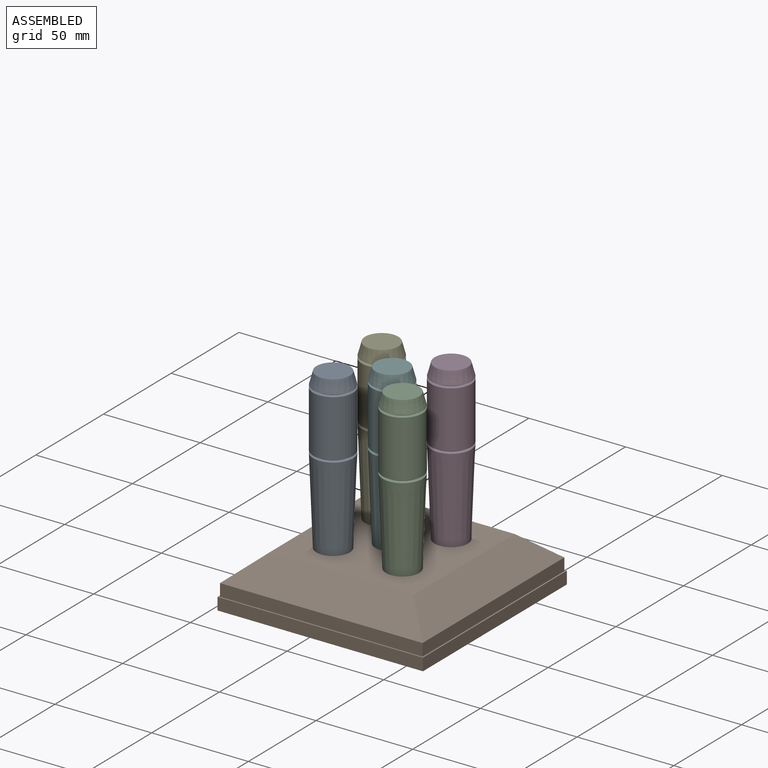
[diagram: assembled view]
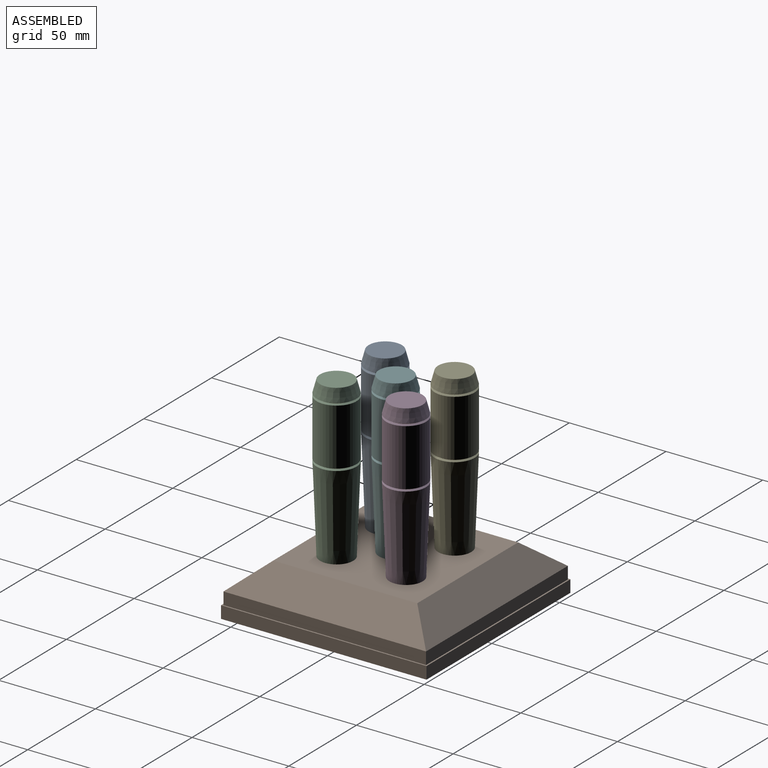
[diagram: assembled view, second angle]
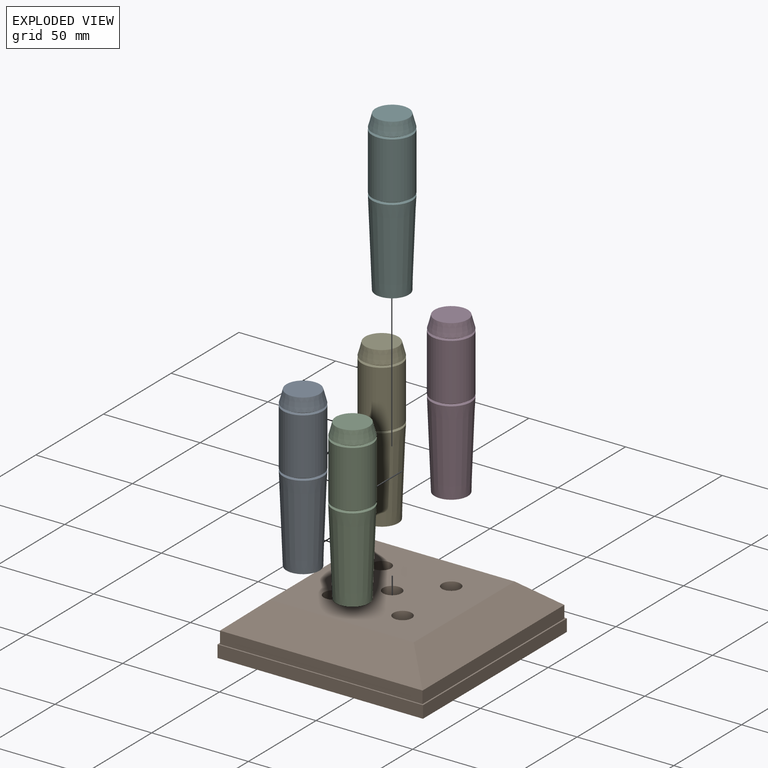
[diagram: exploded view]
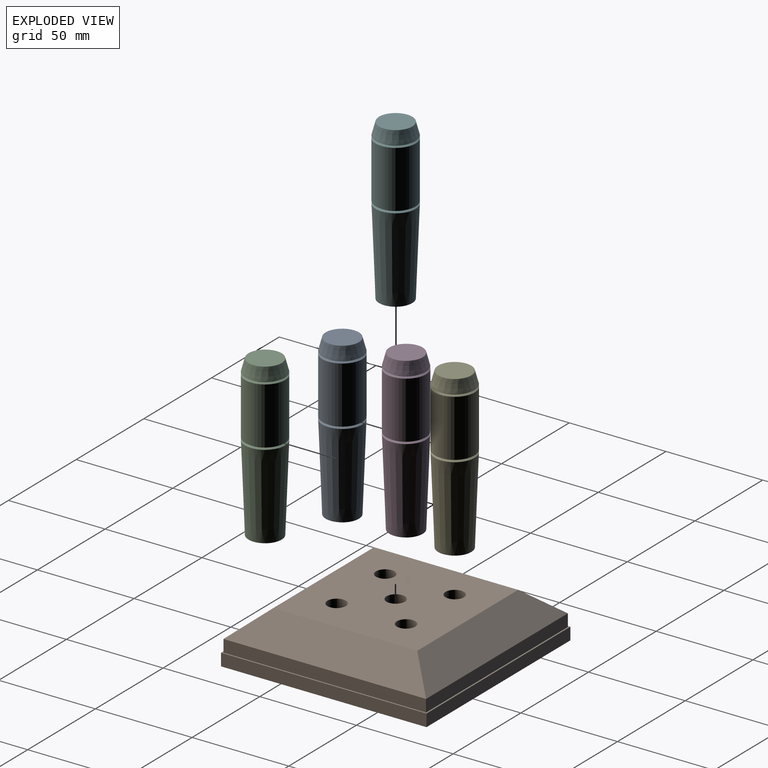
[diagram: exploded view, second angle]
ASSEMBLY  parts=6 mates=5
PART A: 11 faces, bbox 20.6x20.6x82.6 mm
  f0: cone r=9.27mm half-angle=60deg, axis (0,0,-1), area 72.1mm2, adj f1,f8
  f1: cone r=10.29mm half-angle=60deg, axis (0,0,1), area 72.1mm2, adj f0,f2
  f2: cone r=10.29mm half-angle=15deg, axis (0,0,-1), area 389.8mm2, adj f1,f3
  f3: plane 17.17x17.17mm, normal (0,0,1), area 231.6mm2, adj f2
  f4: plane 17.17x17.17mm, normal (0,0,-1), area 182.2mm2, adj f5,f9
  f5: cone r=10.29mm half-angle=2.2deg, axis (0,0,1), area 2637.3mm2, adj f4,f6
  f6: cone r=10.29mm half-angle=60deg, axis (0,0,-1), area 72.1mm2, adj f5,f7
  f7: cone r=9.27mm half-angle=60deg, axis (0,0,1), area 72.1mm2, adj f6,f8
  f8: cylinder r=10.29mm len=29.4mm, axis (0,0,-1), area 1900.5mm2, adj f0,f7
  f9: cylinder r=3.96mm len=25.4mm, axis (0,0,-1), area 632.4mm2, adj f4,f10
  f10: plane 7.92x7.92mm, normal (0,0,-1), area 49.3mm2, adj f9
PART B: 30 faces, bbox 106.3x106.3x25.4 mm
  f0: plane 106.3x106.27mm, normal (0,0,-1), area 8973.5mm2, adj f16,f18,f20,f22,f24,f26,f27,f28
  f1: cylinder r=4.76mm len=17.78mm, axis (0,0,1), area 532mm2, adj f15,f25
  f2: cylinder r=4.76mm len=17.78mm, axis (0,0,1), area 532mm2, adj f15,f23
  f3: cylinder r=4.76mm len=17.78mm, axis (0,0,1), area 532mm2, adj f15,f21
  f4: cylinder r=4.76mm len=17.78mm, axis (0,0,1), area 532mm2, adj f15,f19
  f5: cylinder r=4.76mm len=17.78mm, axis (0,0,1), area 532mm2, adj f15,f17
  f6: plane 104.75x6.35mm, normal (0,1,0), area 665.2mm2, adj f7,f9,f10,f12
  f7: plane 104.78x6.35mm, normal (1,0,0), area 665.3mm2, adj f6,f8,f10,f11
  f8: plane 104.75x6.35mm, normal (0,-1,0), area 665.2mm2, adj f7,f9,f10,f14
  f9: plane 104.78x6.35mm, normal (-1,0,0), area 665.3mm2, adj f6,f8,f10,f13
  f10: plane 106.3x106.27mm, normal (0,0,1), area 321.6mm2, adj f6,f7,f8,f9,f26,f27,f28,f29
  f11: plane 104.78x15.14mm, normal (0.64,0,0.77), area 1771.1mm2, adj f7,f12,f14,f15
  f12: plane 104.75x15.14mm, normal (0,0.64,0.77), area 1770.6mm2, adj f6,f11,f13,f15
  f13: plane 104.78x15.14mm, normal (-0.64,0,0.77), area 1771.1mm2, adj f9,f12,f14,f15
  f14: plane 104.75x15.14mm, normal (0,-0.64,0.77), area 1770.6mm2, adj f8,f11,f13,f15
  f15: plane 74.5x74.48mm, normal (0,0,1), area 5192.7mm2, adj f1,f2,f3,f4,f5,f11,f12,f13
  f16: cylinder r=12.16mm len=24.32mm, axis (0,0,-1), area 582.3mm2, adj f0,f17
  f17: plane 24.32x24.32mm, normal (0,0,-1), area 393.4mm2, adj f5,f16
  f18: cylinder r=12.16mm len=24.32mm, axis (0,0,-1), area 582.3mm2, adj f0,f19
  f19: plane 24.32x24.32mm, normal (0,0,-1), area 393.4mm2, adj f4,f18
  f20: cylinder r=12.16mm len=24.32mm, axis (0,0,-1), area 582.3mm2, adj f0,f21
  f21: plane 24.32x24.32mm, normal (0,0,-1), area 393.4mm2, adj f3,f20
  f22: cylinder r=12.16mm len=24.32mm, axis (0,0,-1), area 582.3mm2, adj f0,f23
  f23: plane 24.32x24.32mm, normal (0,0,-1), area 393.4mm2, adj f2,f22
  f24: cylinder r=12.16mm len=24.32mm, axis (0,0,-1), area 582.3mm2, adj f0,f25
  f25: plane 24.32x24.32mm, normal (0,0,-1), area 393.4mm2, adj f1,f24
  f26: plane 106.27x6.35mm, normal (0,-1,0), area 674.8mm2, adj f0,f10,f27,f29
  f27: plane 106.3x6.35mm, normal (-1,0,0), area 675mm2, adj f0,f10,f26,f28
  f28: plane 106.27x6.35mm, normal (0,1,0), area 674.8mm2, adj f0,f10,f27,f29
  f29: plane 106.3x6.35mm, normal (1,0,0), area 675mm2, adj f0,f10,f26,f28
PART C: same geometry as A
PART D: same geometry as A
PART E: same geometry as A
PART F: same geometry as A
PLACE A t=(-31.61,7.77,25.4)mm
PLACE B at identity
PLACE C t=(4.31,7.77,25.4)mm
PLACE D t=(4.31,43.69,25.4)mm
PLACE E t=(-31.61,43.69,25.4)mm
PLACE F t=(-13.65,25.73,25.4)mm
MATE fastened D.f0 <-> B.f2  axis (0,0,-1) through (4.31,43.69,25.4)mm
MATE fastened F.f0 <-> B.f5  axis (0,0,-1) through (-13.65,25.73,25.4)mm
MATE fastened E.f0 <-> B.f4  axis (0,0,-1) through (-31.61,43.69,25.4)mm
MATE fastened C.f0 <-> B.f3  axis (0,0,-1) through (4.31,7.77,25.4)mm
MATE fastened A.f0 <-> B.f1  axis (0,0,-1) through (-31.61,7.77,25.4)mm
